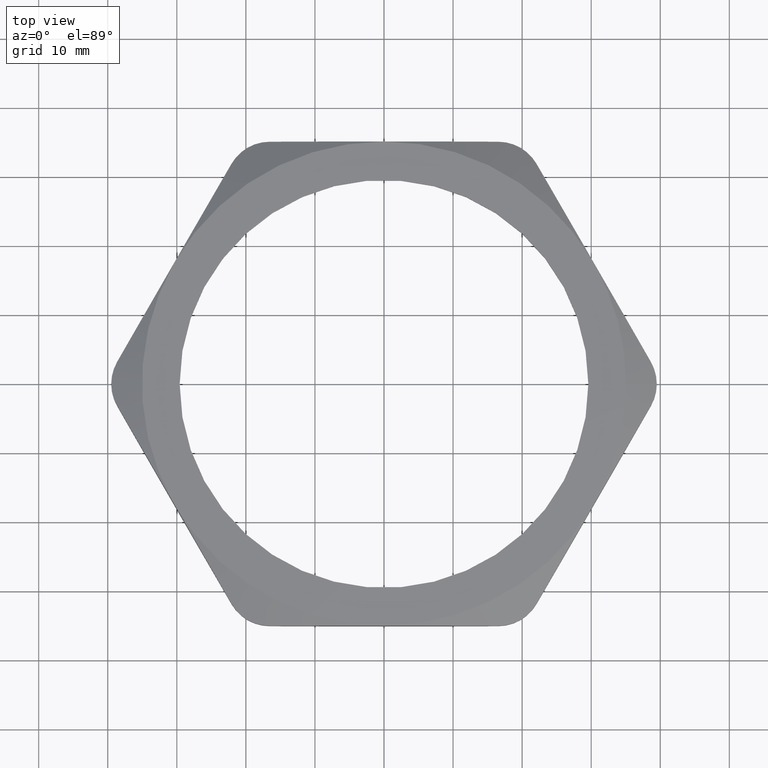
[diagram: clean part render]
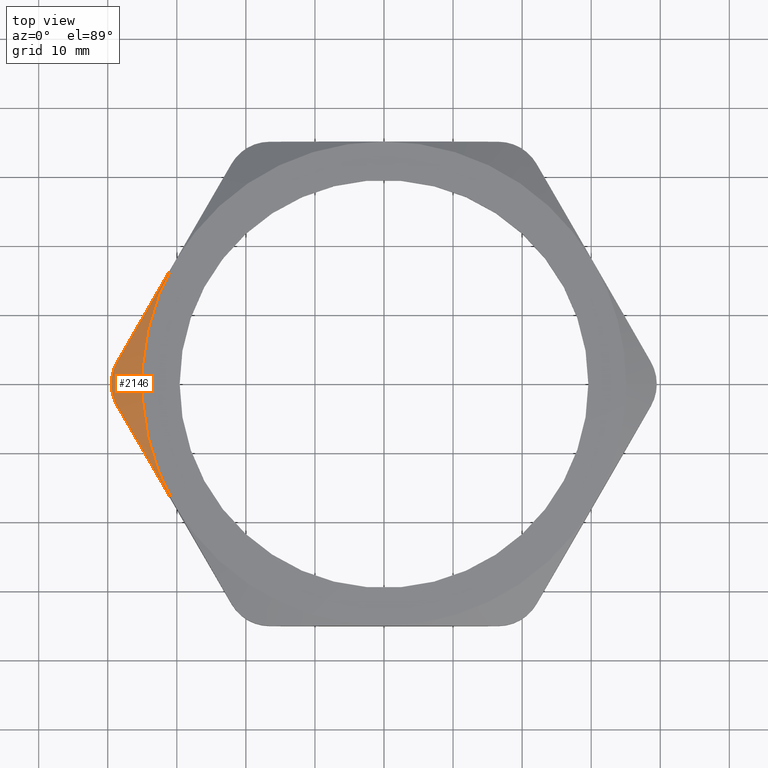
[diagram: same view with one face highlighted and labeled with its STEP entity id]
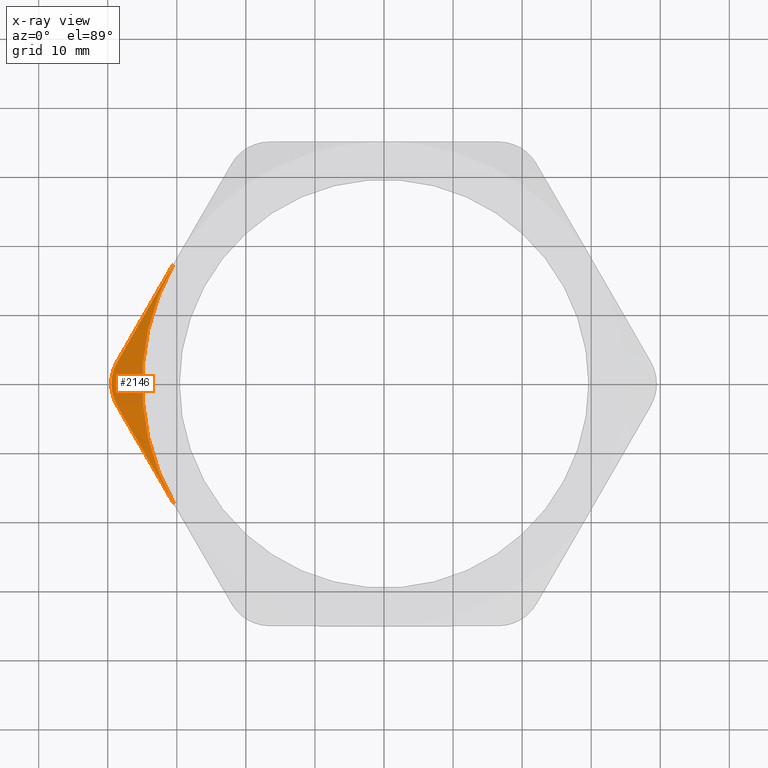
[diagram: x-ray of the same camera — body ghosted, the highlighted face saturated]
A machine part, top view. The second image highlights one B-rep face of the part: STEP entity #2146.
The next image is the same camera in x-ray: the body ghosted, the highlighted face saturated — about 0% of this face is hidden behind the body in this view.
In plain terms, the highlighted conical surface has half-angle 60 deg.
Its self-contained STEP definition (entity closure, byte-faithful):
#228 = FACE_OUTER_BOUND ( 'NONE', #2147, .T. ) ;
#243 = CARTESIAN_POINT ( 'NONE',  ( 0.0000000000000000000, 0.0000000000000000000, 0.3100000000000000000 ) ) ;
#244 = AXIS2_PLACEMENT_3D ( 'NONE', #243, #2499, #2774 ) ;
#245 = CONICAL_SURFACE ( 'NONE', #244, 1.380000000000000100, 1.047197551196600100 ) ;
#277 = CARTESIAN_POINT ( 'NONE',  ( -1.554811608368554100, 5.292955495258597400E-016, 0.2090724708509443300 ) ) ;
#278 = CARTESIAN_POINT ( 'NONE',  ( -1.554811608368554100, 0.01099281858219405000, 0.2090724708509443500 ) ) ;
#279 = CARTESIAN_POINT ( 'NONE',  ( -1.554089692564827800, 0.02193168961669950800, 0.2094220474356587600 ) ) ;
#280 = CARTESIAN_POINT ( 'NONE',  ( -1.551207045609344300, 0.04370183951423249600, 0.2108203737967176400 ) ) ;
#281 = CARTESIAN_POINT ( 'NONE',  ( -1.549017997925171500, 0.05462080594522719700, 0.2118828963575691800 ) ) ;
#282 = CARTESIAN_POINT ( 'NONE',  ( -1.540439734566420700, 0.08637221031105925300, 0.2160587635415277000 ) ) ;
#283 = CARTESIAN_POINT ( 'NONE',  ( -1.532120905562810700, 0.1062887482267729500, 0.2201186431020753200 ) ) ;
#284 = CARTESIAN_POINT ( 'NONE',  ( -1.521317959314644600, 0.1250000000000338100, 0.2254501298317999600 ) ) ;
#287 = B_SPLINE_CURVE_WITH_KNOTS ( 'NONE', 3,
 ( #284, #283, #282, #281, #280, #279, #278, #277 ),
 .UNSPECIFIED., .F., .F.,
 ( 4, 2, 2, 4 ),
 ( 7.019202235484103300E-017, 0.001672922543545477400, 0.002509383815318181000, 0.003345845087090884500 ),
 .UNSPECIFIED. ) ;
#537 = CARTESIAN_POINT ( 'NONE',  ( -1.554811608368554100, -0.01095876704390777800, 0.2090724708509443300 ) ) ;
#538 = CARTESIAN_POINT ( 'NONE',  ( -1.554811608368554100, 5.292955495258597400E-016, 0.2090724708509443300 ) ) ;
#540 = B_SPLINE_CURVE_WITH_KNOTS ( 'NONE', 3,
 ( #538, #537, #599, #598, #597, #596, #595, #594 ),
 .UNSPECIFIED., .F., .F.,
 ( 4, 2, 2, 4 ),
 ( 0.003345845087090884500, 0.004179715322469516900, 0.005013585557848149700, 0.006681326028605416200 ),
 .UNSPECIFIED. ) ;
#586 = CARTESIAN_POINT ( 'NONE',  ( -1.554811608368554100, 5.292955495258597400E-016, 0.2090724708509443300 ) ) ;
#587 = CARTESIAN_POINT ( 'NONE',  ( -1.521317959314664000, -0.1249999999999992400, 0.2254501298317905200 ) ) ;
#594 = CARTESIAN_POINT ( 'NONE',  ( -1.521317959314664000, -0.1249999999999992400, 0.2254501298317905200 ) ) ;
#595 = CARTESIAN_POINT ( 'NONE',  ( -1.532090246469603300, -0.1063418513339250400, 0.2201337740249046100 ) ) ;
#596 = CARTESIAN_POINT ( 'NONE',  ( -1.540539165306869200, -0.08604865499399996800, 0.2160103088555654400 ) ) ;
#597 = CARTESIAN_POINT ( 'NONE',  ( -1.549020622848536600, -0.05458864605677159900, 0.2118816448795246800 ) ) ;
#598 = CARTESIAN_POINT ( 'NONE',  ( -1.551174681486184400, -0.04389182371931521500, 0.2108360812570666000 ) ) ;
#599 = CARTESIAN_POINT ( 'NONE',  ( -1.554079673638088600, -0.02206099775970145700, 0.2094268994390907600 ) ) ;
#1246 = CARTESIAN_POINT ( 'NONE',  ( -1.521317959314644600, 0.1250000000000338100, 0.2254501298317999600 ) ) ;
#1566 = CARTESIAN_POINT ( 'NONE',  ( -1.521317959314644600, 0.1250000000000338100, 0.2254501298317999600 ) ) ;
#1567 = CARTESIAN_POINT ( 'NONE',  ( -1.467947818020606300, 0.2174397963284379600, 0.2517894444547647500 ) ) ;
#1568 = CARTESIAN_POINT ( 'NONE',  ( -1.414156936425821100, 0.3106083362345274900, 0.2730486519549045800 ) ) ;
#1569 = CARTESIAN_POINT ( 'NONE',  ( -1.332639491605956700, 0.4518006923657248400, 0.2949023157344916000 ) ) ;
#1570 = CARTESIAN_POINT ( 'NONE',  ( -1.305328520390589800, 0.4991046821147910900, 0.3005147175850690400 ) ) ;
#1571 = CARTESIAN_POINT ( 'NONE',  ( -1.264133931120566600, 0.5704558037274025700, 0.3061788010844177000 ) ) ;
#1572 = CARTESIAN_POINT ( 'NONE',  ( -1.250364435745619800, 0.5943052693113954900, 0.3076084240357877000 ) ) ;
#1573 = CARTESIAN_POINT ( 'NONE',  ( -1.222746978702892000, 0.6421401080852516800, 0.3095202513707784300 ) ) ;
#1574 = CARTESIAN_POINT ( 'NONE',  ( -1.208901586679558500, 0.6661210305203741900, 0.3100000000000000500 ) ) ;
#1575 = CARTESIAN_POINT ( 'NONE',  ( -1.195115057222525300, 0.6900000000000001700, 0.3100000000000000000 ) ) ;
#1576 = CARTESIAN_POINT ( 'NONE',  ( -1.195115057222525300, 0.6900000000000001700, 0.3100000000000000000 ) ) ;
#1577 = B_SPLINE_CURVE_WITH_KNOTS ( 'NONE', 3,
 ( #1575, #1574, #1573, #1572, #1571, #1570, #1569, #1568, #1567, #1566 ),
 .UNSPECIFIED., .F., .F.,
 ( 4, 2, 2, 2, 4 ),
 ( 0.02047705138538596600, 0.02255677289532718300, 0.02463649440526839400, 0.02879593742515081800, 0.03711482346491566700 ),
 .UNSPECIFIED. ) ;
#1579 = CARTESIAN_POINT ( 'NONE',  ( -1.195115057222525500, -0.6899999999999992800, 0.3100000000000000000 ) ) ;
#1620 = CARTESIAN_POINT ( 'NONE',  ( -1.195115057222525500, -0.6899999999999992800, 0.3100000000000000000 ) ) ;
#1621 = CARTESIAN_POINT ( 'NONE',  ( -1.250494275335839500, -0.5940803805443005700, 0.3100000000000001100 ) ) ;
#1622 = CARTESIAN_POINT ( 'NONE',  ( -1.305314306591482500, -0.4991293011370133700, 0.3022140957571458600 ) ) ;
#1623 = CARTESIAN_POINT ( 'NONE',  ( -1.413982410776074800, -0.3109106235271111900, 0.2731091107386489600 ) ) ;
#1624 = CARTESIAN_POINT ( 'NONE',  ( -1.467834459632706400, -0.2176361388157434500, 0.2518453892615747400 ) ) ;
#1625 = CARTESIAN_POINT ( 'NONE',  ( -1.521317959314664000, -0.1249999999999992400, 0.2254501298317905200 ) ) ;
#1638 = B_SPLINE_CURVE_WITH_KNOTS ( 'NONE', 3,
 ( #1625, #1624, #1623, #1622, #1621, #1620 ),
 .UNSPECIFIED., .F., .F.,
 ( 4, 2, 4 ),
 ( 0.003768952153750657900, 0.01212300176956831000, 0.02047705138538595900 ),
 .UNSPECIFIED. ) ;
#1724 = DIRECTION ( 'NONE',  ( 1.000000000000000000, 0.0000000000000000000, 0.0000000000000000000 ) ) ;
#1725 = DIRECTION ( 'NONE',  ( 0.0000000000000000000, 0.0000000000000000000, 1.000000000000000000 ) ) ;
#1726 = CARTESIAN_POINT ( 'NONE',  ( 0.0000000000000000000, 0.0000000000000000000, 0.3100000000000000000 ) ) ;
#1727 = AXIS2_PLACEMENT_3D ( 'NONE', #1726, #1725, #1724 ) ;
#1728 = CIRCLE ( 'NONE', #1727, 1.380000000000000100 ) ;
#2114 = ORIENTED_EDGE ( 'NONE', *, *, #2290, .T. ) ;
#2115 = ORIENTED_EDGE ( 'NONE', *, *, #2850, .T. ) ;
#2116 = ORIENTED_EDGE ( 'NONE', *, *, #2881, .F. ) ;
#2146 = ADVANCED_FACE ( 'NONE', ( #228 ), #245, .T. ) ;
#2147 = EDGE_LOOP ( 'NONE', ( #2148, #2149, #2114, #2115, #2116 ) ) ;
#2148 = ORIENTED_EDGE ( 'NONE', *, *, #2827, .T. ) ;
#2149 = ORIENTED_EDGE ( 'NONE', *, *, #2150, .T. ) ;
#2150 = EDGE_CURVE ( 'NONE', #2635, #2298, #287, .T. ) ;
#2290 = EDGE_CURVE ( 'NONE', #2298, #2297, #540, .T. ) ;
#2297 = VERTEX_POINT ( 'NONE', #587 ) ;
#2298 = VERTEX_POINT ( 'NONE', #586 ) ;
#2499 = DIRECTION ( 'NONE',  ( 0.0000000000000000000, 0.0000000000000000000, -1.000000000000000000 ) ) ;
#2635 = VERTEX_POINT ( 'NONE', #1246 ) ;
#2774 = DIRECTION ( 'NONE',  ( 1.000000000000000000, 0.0000000000000000000, 0.0000000000000000000 ) ) ;
#2827 = EDGE_CURVE ( 'NONE', #2828, #2635, #1577, .T. ) ;
#2828 = VERTEX_POINT ( 'NONE', #1576 ) ;
#2848 = VERTEX_POINT ( 'NONE', #1579 ) ;
#2850 = EDGE_CURVE ( 'NONE', #2297, #2848, #1638, .T. ) ;
#2881 = EDGE_CURVE ( 'NONE', #2828, #2848, #1728, .T. ) ;